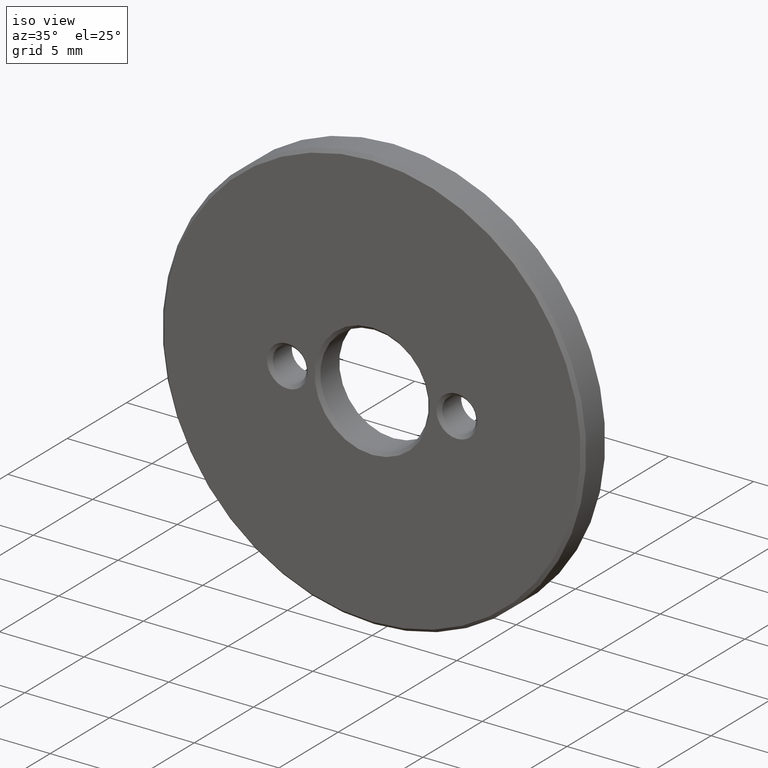
[diagram: clean part render]
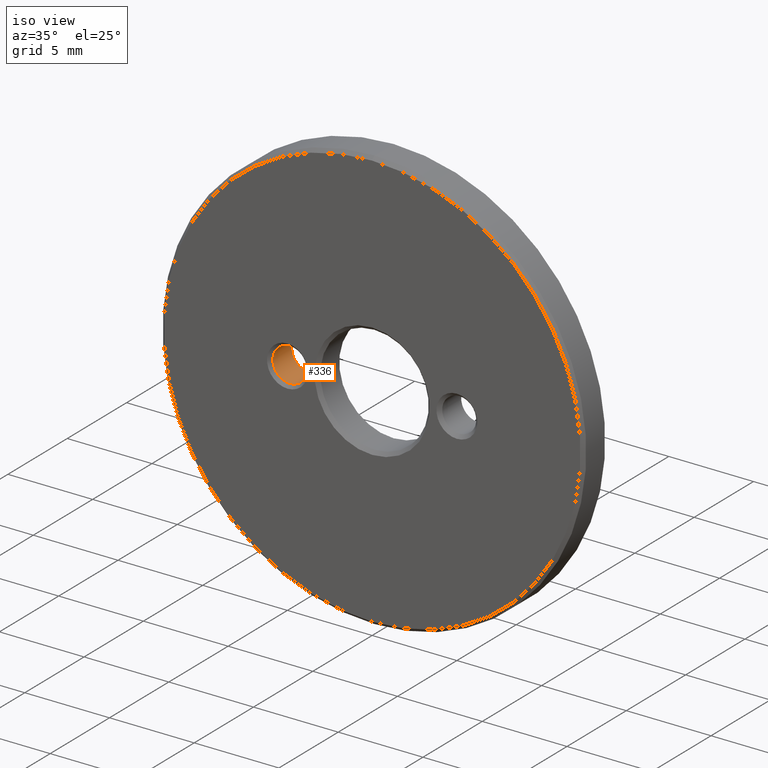
[diagram: same view with one face highlighted and labeled with its STEP entity id]
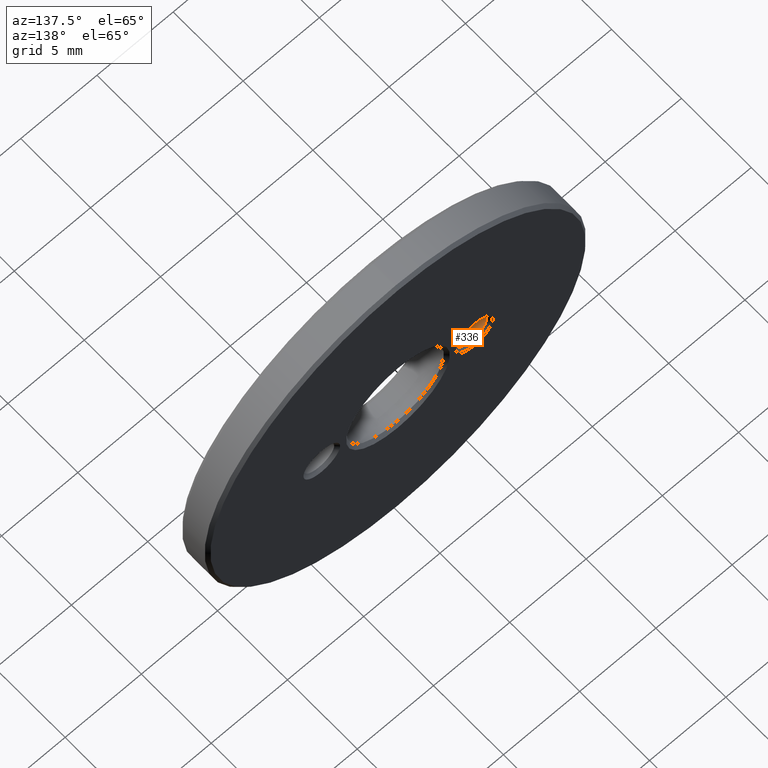
[diagram: same view with one face highlighted and labeled with its STEP entity id]
A machine part, iso view. The second image highlights one B-rep face of the part: STEP entity #336.
A second angle (auxiliary view) of the same face is appended — the face is thin or edge-on in the first view.
In plain terms, the highlighted cylindrical surface (bore or boss wall) has radius 1.005 mm, axis along (-0, -1, -0).
Its self-contained STEP definition (entity closure, byte-faithful):
#15 = EDGE_CURVE ( 'NONE', #232, #232, #119, .T. ) ;
#17 = FACE_OUTER_BOUND ( 'NONE', #175, .T. ) ;
#48 = AXIS2_PLACEMENT_3D ( 'NONE', #169, #206, #145 ) ;
#53 = CARTESIAN_POINT ( 'NONE',  ( -5.000000000000000000, 0.1999999999999981515, 1.004999999999999893 ) ) ;
#66 = CIRCLE ( 'NONE', #205, 1.004999999999999893 ) ;
#72 = CARTESIAN_POINT ( 'NONE',  ( -5.000000000000000000, 0.1999999999999981515, 0.000000000000000000 ) ) ;
#102 = CARTESIAN_POINT ( 'NONE',  ( -5.000000000000000000, 2.000000000000000000, 0.000000000000000000 ) ) ;
#119 = CIRCLE ( 'NONE', #48, 1.004999999999999893 ) ;
#123 = EDGE_LOOP ( 'NONE', ( #296 ) ) ;
#134 = ORIENTED_EDGE ( 'NONE', *, *, #15, .T. ) ;
#141 = DIRECTION ( 'NONE',  ( -0.000000000000000000, -1.000000000000000000, -0.000000000000000000 ) ) ;
#145 = DIRECTION ( 'NONE',  ( 0.000000000000000000, 0.000000000000000000, 1.000000000000000000 ) ) ;
#169 = CARTESIAN_POINT ( 'NONE',  ( -5.000000000000000000, 1.800000000000000266, 0.000000000000000000 ) ) ;
#171 = FACE_OUTER_BOUND ( 'NONE', #123, .T. ) ;
#175 = EDGE_LOOP ( 'NONE', ( #134 ) ) ;
#205 = AXIS2_PLACEMENT_3D ( 'NONE', #72, #228, #290 ) ;
#206 = DIRECTION ( 'NONE',  ( 0.000000000000000000, 1.000000000000000000, 0.000000000000000000 ) ) ;
#228 = DIRECTION ( 'NONE',  ( -0.000000000000000000, -1.000000000000000000, -0.000000000000000000 ) ) ;
#232 = VERTEX_POINT ( 'NONE', #391 ) ;
#279 = EDGE_CURVE ( 'NONE', #322, #322, #66, .T. ) ;
#290 = DIRECTION ( 'NONE',  ( 0.000000000000000000, 0.000000000000000000, 1.000000000000000000 ) ) ;
#296 = ORIENTED_EDGE ( 'NONE', *, *, #279, .T. ) ;
#314 = DIRECTION ( 'NONE',  ( 0.000000000000000000, 0.000000000000000000, -1.000000000000000000 ) ) ;
#322 = VERTEX_POINT ( 'NONE', #53 ) ;
#336 = ADVANCED_FACE ( 'NONE', ( #171, #17 ), #386, .F. ) ;
#341 = AXIS2_PLACEMENT_3D ( 'NONE', #102, #141, #314 ) ;
#386 = CYLINDRICAL_SURFACE ( 'NONE', #341, 1.004999999999999893 ) ;
#391 = CARTESIAN_POINT ( 'NONE',  ( -5.000000000000000000, 1.800000000000000266, 1.004999999999999893 ) ) ;